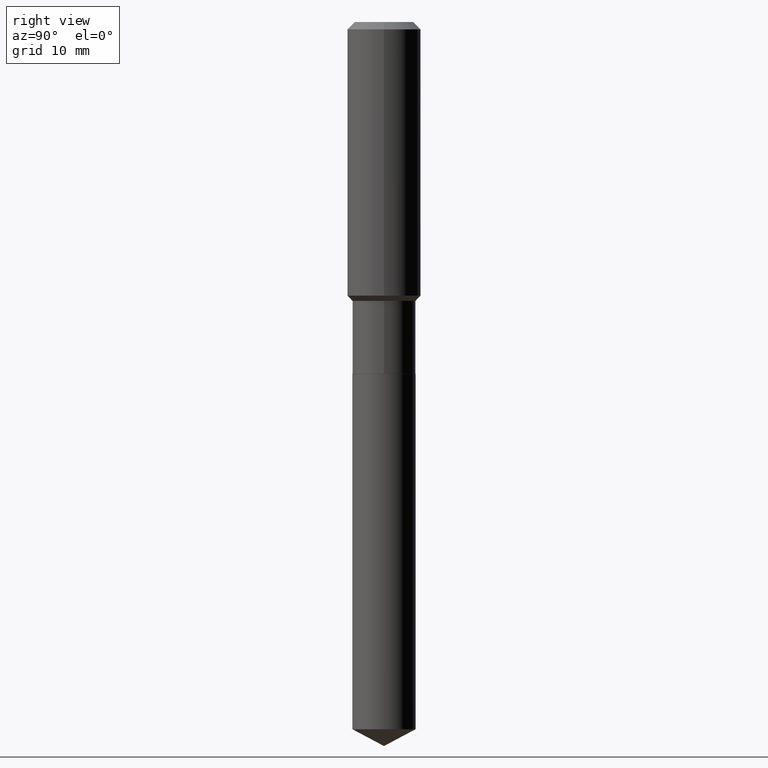
[diagram: clean part render]
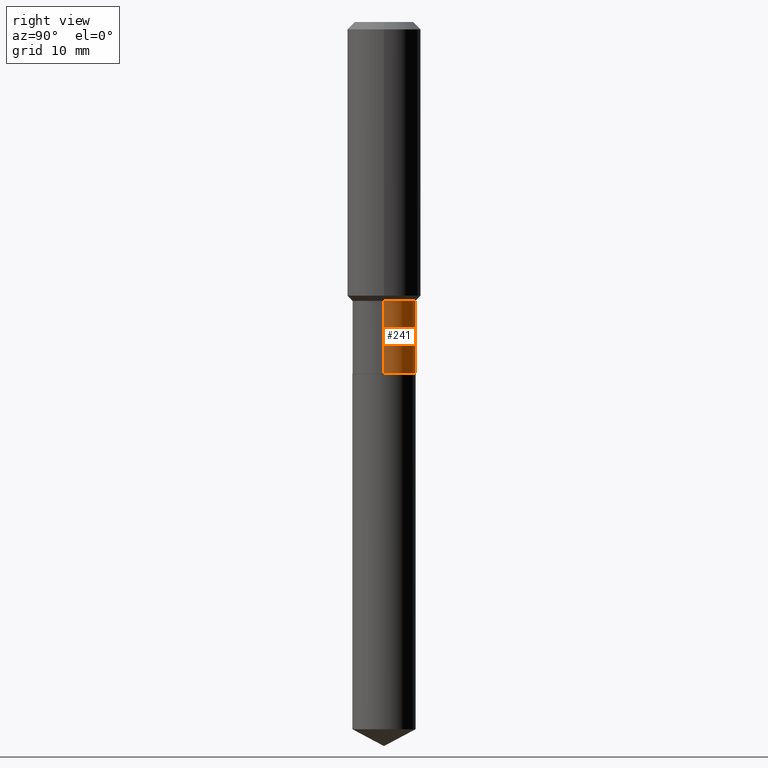
[diagram: same view with one face highlighted and labeled with its STEP entity id]
A machine part, right view. The second image highlights one B-rep face of the part: STEP entity #241.
In plain terms, the highlighted cylindrical surface (edge-blend (fillet) strip) has radius 5.1498 mm, axis along (-0, 0, 1).
Its self-contained STEP definition (entity closure, byte-faithful):
#7 = DIRECTION ( 'NONE',  ( -2.445468806185136877E-29, 3.491481338843145188E-15, 1.000000000000000000 ) ) ;
#25 = CARTESIAN_POINT ( 'NONE',  ( 0.2027499999999999858, -1.415795682900890473E-15, 9.886448412926258951E-30 ) ) ;
#27 = DIRECTION ( 'NONE',  ( 1.000000000000000000, -6.982962677686266711E-15, 4.876176775795935793E-29 ) ) ;
#42 = ORIENTED_EDGE ( 'NONE', *, *, #184, .T. ) ;
#61 = DIRECTION ( 'NONE',  ( -2.445468806185136597E-29, 3.491481338843145583E-15, 1.000000000000000000 ) ) ;
#64 = AXIS2_PLACEMENT_3D ( 'NONE', #411, #61, #27 ) ;
#67 = VERTEX_POINT ( 'NONE', #412 ) ;
#75 = ORIENTED_EDGE ( 'NONE', *, *, #414, .F. ) ;
#92 = LINE ( 'NONE', #25, #190 ) ;
#101 = CYLINDRICAL_SURFACE ( 'NONE', #64, 0.2027499999999999858 ) ;
#120 = EDGE_CURVE ( 'NONE', #67, #307, #359, .T. ) ;
#139 = FACE_OUTER_BOUND ( 'NONE', #457, .T. ) ;
#152 = CARTESIAN_POINT ( 'NONE',  ( 0.2027500000000000135, -9.290482694527719779E-15, -2.255399999999999405 ) ) ;
#172 = DIRECTION ( 'NONE',  ( -2.445468806185136597E-29, 3.491481338843145583E-15, 1.000000000000000000 ) ) ;
#184 = EDGE_CURVE ( 'NONE', #311, #67, #420, .T. ) ;
#187 = DIRECTION ( 'NONE',  ( -2.445468806185136877E-29, 3.491481338843145188E-15, 1.000000000000000000 ) ) ;
#190 = VECTOR ( 'NONE', #187, 39.37007874015748143 ) ;
#201 = CARTESIAN_POINT ( 'NONE',  ( -0.2027499999999999858, 1.440625396753603026E-15, -9.973140895491819537E-30 ) ) ;
#204 = AXIS2_PLACEMENT_3D ( 'NONE', #361, #172, #253 ) ;
#227 = EDGE_CURVE ( 'NONE', #311, #433, #92, .T. ) ;
#230 = VECTOR ( 'NONE', #7, 39.37007874015748143 ) ;
#241 = ADVANCED_FACE ( 'NONE', ( #139 ), #101, .T. ) ;
#253 = DIRECTION ( 'NONE',  ( 1.000000000000000000, -6.982962677686269866E-15, 0.000000000000000000 ) ) ;
#261 = DIRECTION ( 'NONE',  ( -2.445468806185136597E-29, 3.491481338843145583E-15, 1.000000000000000000 ) ) ;
#267 = CIRCLE ( 'NONE', #204, 0.2027499999999999303 ) ;
#288 = ORIENTED_EDGE ( 'NONE', *, *, #120, .T. ) ;
#307 = VERTEX_POINT ( 'NONE', #453 ) ;
#311 = VERTEX_POINT ( 'NONE', #152 ) ;
#335 = CARTESIAN_POINT ( 'NONE',  ( 5.515510345469956011E-29, -7.874687011626829109E-15, -2.255399999999999405 ) ) ;
#359 = LINE ( 'NONE', #201, #230 ) ;
#361 = CARTESIAN_POINT ( 'NONE',  ( 4.376410975548918967E-29, -6.248355003993691698E-15, -1.789599999999999413 ) ) ;
#408 = DIRECTION ( 'NONE',  ( 1.000000000000000000, -6.982962677686266711E-15, 0.000000000000000000 ) ) ;
#411 = CARTESIAN_POINT ( 'NONE',  ( 0.000000000000000000, 0.000000000000000000, 0.000000000000000000 ) ) ;
#412 = CARTESIAN_POINT ( 'NONE',  ( -0.2027500000000000135, -5.620895611056656589E-15, -2.255399999999999405 ) ) ;
#414 = EDGE_CURVE ( 'NONE', #433, #307, #267, .T. ) ;
#419 = ORIENTED_EDGE ( 'NONE', *, *, #227, .F. ) ;
#420 = CIRCLE ( 'NONE', #480, 0.2027500000000000135 ) ;
#433 = VERTEX_POINT ( 'NONE', #467 ) ;
#453 = CARTESIAN_POINT ( 'NONE',  ( -0.2027499999999999303, -5.620895611056657378E-15, -1.789599999999999413 ) ) ;
#457 = EDGE_LOOP ( 'NONE', ( #42, #288, #75, #419 ) ) ;
#467 = CARTESIAN_POINT ( 'NONE',  ( 0.2027499999999999303, -7.664150686894582368E-15, -1.789599999999999413 ) ) ;
#480 = AXIS2_PLACEMENT_3D ( 'NONE', #335, #261, #408 ) ;